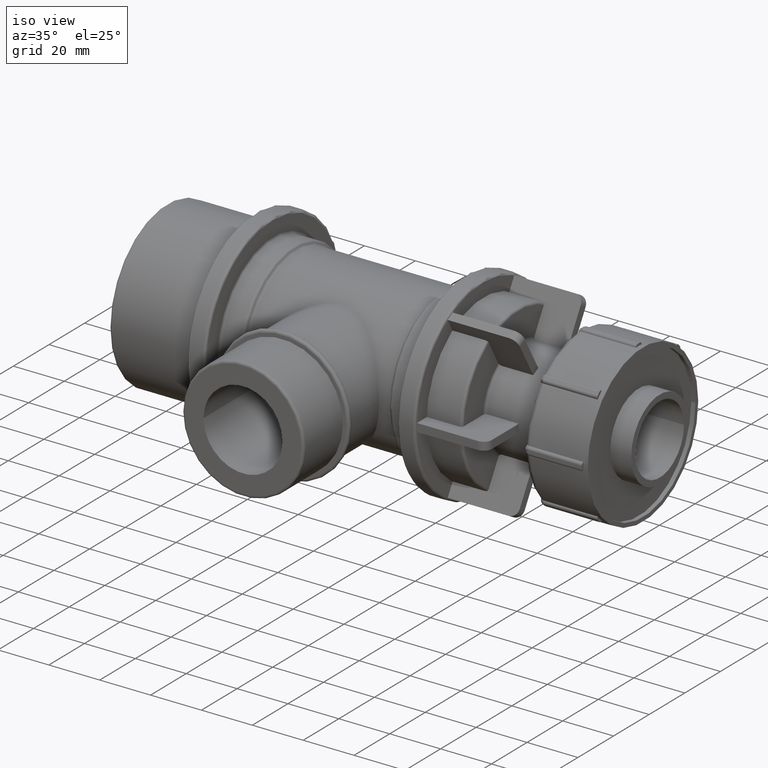
[diagram: clean part render]
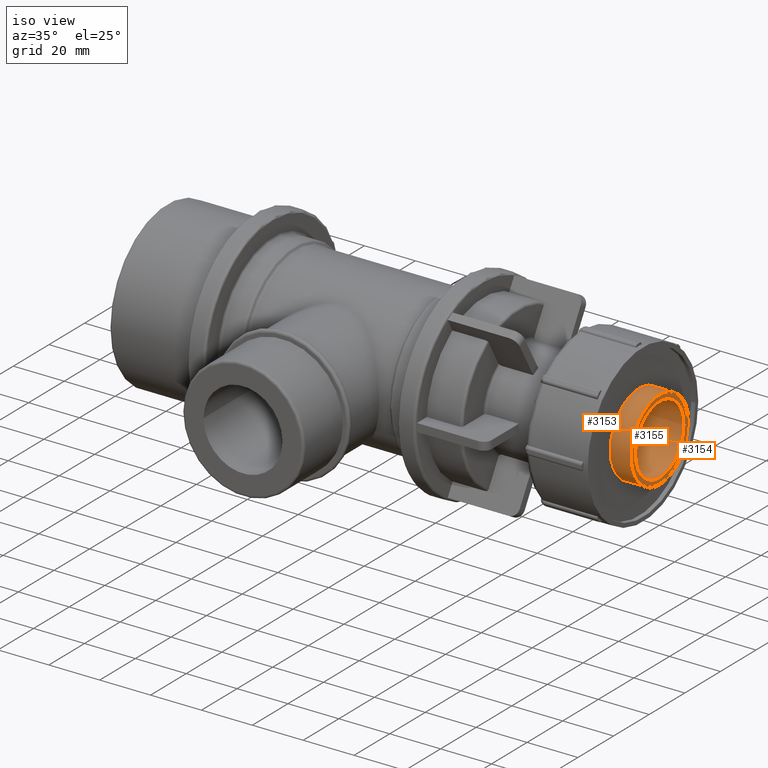
[diagram: same view with one multi-face feature highlighted, each face labeled with its STEP entity id]
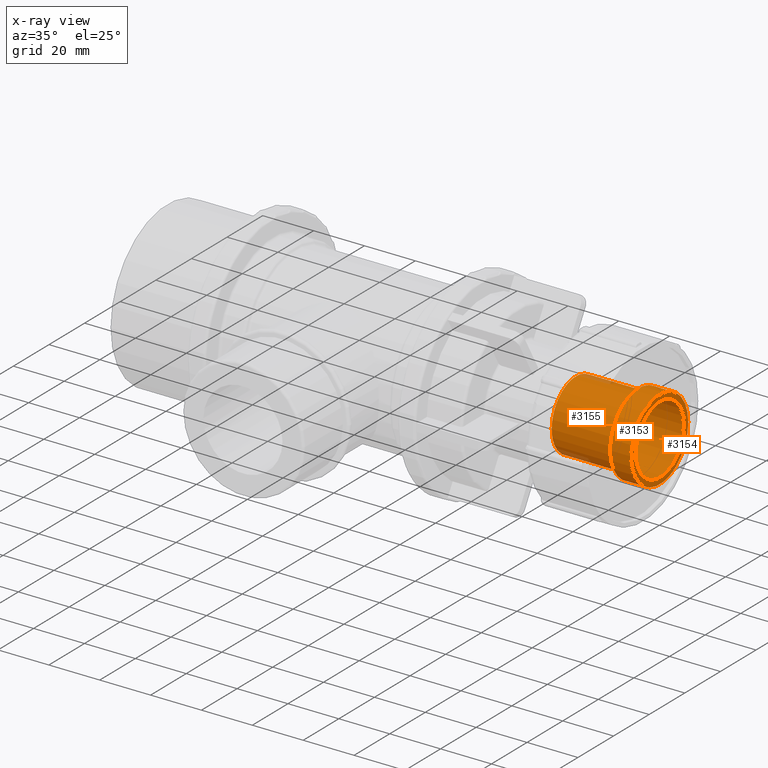
[diagram: x-ray of the same camera — body ghosted, the whole feature saturated]
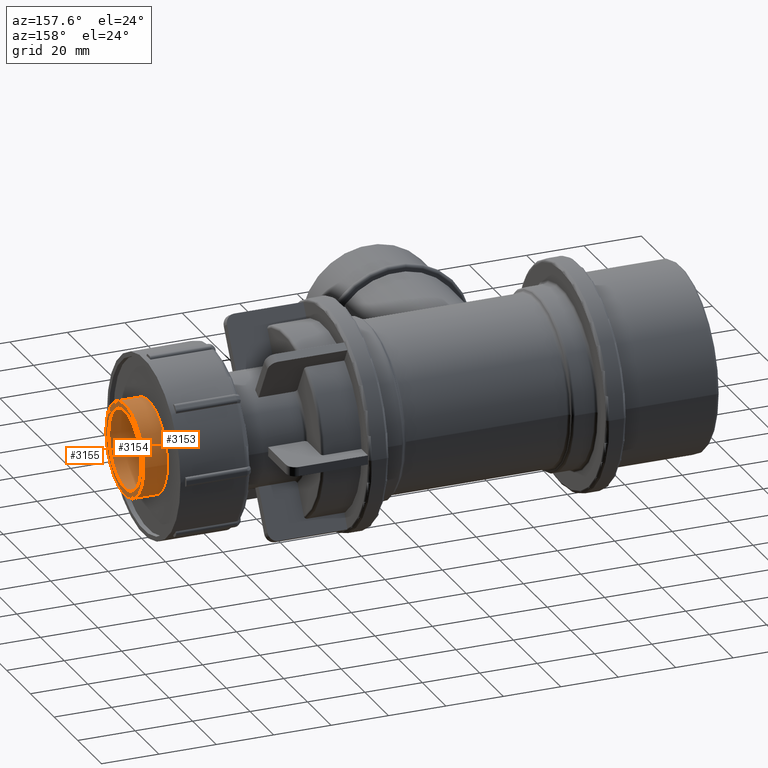
[diagram: same view with one multi-face feature highlighted, each face labeled with its STEP entity id]
A machine part, iso view. The highlighted faces form ONE feature: a stepped (counterbored) hole: 2 coaxial cylindrical walls of radii 13.6 -> 16 mm joined by 1 annular planar shoulder face(s). The faces share edges in the B-rep.
The next image is the same camera in x-ray: the body ghosted and the whole hole feature saturated, so the bore chain is visible through the body.
A second angle (auxiliary view) of the same feature is appended — it is thin or edge-on in the first view.
Their STEP definitions:
[1] entity #3153 (Cylinder):
#681=CIRCLE('',#3512,16.);
#682=CIRCLE('',#3514,16.);
#775=FACE_BOUND('',#1196,.T.);
#946=FACE_OUTER_BOUND('',#1195,.T.);
#1195=EDGE_LOOP('',(#2711));
#1196=EDGE_LOOP('',(#2712));
#1546=VERTEX_POINT('',#5907);
#1547=VERTEX_POINT('',#5910);
#1952=EDGE_CURVE('',#1546,#1546,#681,.T.);
#1953=EDGE_CURVE('',#1547,#1547,#682,.T.);
#2711=ORIENTED_EDGE('',*,*,#1953,.F.);
#2712=ORIENTED_EDGE('',*,*,#1952,.T.);
#2988=CYLINDRICAL_SURFACE('',#3513,16.);
#3153=ADVANCED_FACE('',(#946,#775),#2988,.T.);
#3512=AXIS2_PLACEMENT_3D('',#5908,#4286,#4287);
#3513=AXIS2_PLACEMENT_3D('',#5909,#4288,#4289);
#3514=AXIS2_PLACEMENT_3D('',#5911,#4290,#4291);
#4286=DIRECTION('center_axis',(1.,0.,0.));
#4287=DIRECTION('ref_axis',(0.,0.,-1.));
#4288=DIRECTION('center_axis',(1.,0.,0.));
#4289=DIRECTION('ref_axis',(0.,1.,0.));
#4290=DIRECTION('center_axis',(1.,0.,0.));
#4291=DIRECTION('ref_axis',(0.,0.,-1.));
#5907=CARTESIAN_POINT('',(105.9,16.,0.));
#5908=CARTESIAN_POINT('Origin',(105.9,0.,0.));
#5909=CARTESIAN_POINT('Origin',(110.025,0.,0.));
#5910=CARTESIAN_POINT('',(114.15,16.,0.));
#5911=CARTESIAN_POINT('Origin',(114.15,0.,0.));
[2] entity #3155 (Cylinder):
#683=CIRCLE('',#3516,13.6);
#684=CIRCLE('',#3518,13.6);
#777=FACE_BOUND('',#1200,.T.);
#948=FACE_OUTER_BOUND('',#1199,.T.);
#1199=EDGE_LOOP('',(#2715));
#1200=EDGE_LOOP('',(#2716));
#1548=VERTEX_POINT('',#5913);
#1549=VERTEX_POINT('',#5916);
#1954=EDGE_CURVE('',#1548,#1548,#683,.T.);
#1955=EDGE_CURVE('',#1549,#1549,#684,.T.);
#2715=ORIENTED_EDGE('',*,*,#1955,.F.);
#2716=ORIENTED_EDGE('',*,*,#1954,.T.);
#2989=CYLINDRICAL_SURFACE('',#3517,13.6);
#3155=ADVANCED_FACE('',(#948,#777),#2989,.F.);
#3516=AXIS2_PLACEMENT_3D('',#5914,#4294,#4295);
#3517=AXIS2_PLACEMENT_3D('',#5915,#4296,#4297);
#3518=AXIS2_PLACEMENT_3D('',#5917,#4298,#4299);
#4294=DIRECTION('center_axis',(1.,0.,0.));
#4295=DIRECTION('ref_axis',(0.,0.,-1.));
#4296=DIRECTION('center_axis',(1.,0.,0.));
#4297=DIRECTION('ref_axis',(0.,1.,0.));
#4298=DIRECTION('center_axis',(1.,0.,0.));
#4299=DIRECTION('ref_axis',(0.,0.,-1.));
#5913=CARTESIAN_POINT('',(114.15,13.6,0.));
#5914=CARTESIAN_POINT('Origin',(114.15,0.,0.));
#5915=CARTESIAN_POINT('Origin',(97.65,0.,0.));
#5916=CARTESIAN_POINT('',(81.15,13.6,0.));
#5917=CARTESIAN_POINT('Origin',(81.15,0.,0.));
[3] entity #3154 (Plane):
#467=PLANE('',#3515);
#682=CIRCLE('',#3514,16.);
#683=CIRCLE('',#3516,13.6);
#776=FACE_BOUND('',#1198,.T.);
#947=FACE_OUTER_BOUND('',#1197,.T.);
#1197=EDGE_LOOP('',(#2713));
#1198=EDGE_LOOP('',(#2714));
#1547=VERTEX_POINT('',#5910);
#1548=VERTEX_POINT('',#5913);
#1953=EDGE_CURVE('',#1547,#1547,#682,.T.);
#1954=EDGE_CURVE('',#1548,#1548,#683,.T.);
#2713=ORIENTED_EDGE('',*,*,#1953,.T.);
#2714=ORIENTED_EDGE('',*,*,#1954,.F.);
#3154=ADVANCED_FACE('',(#947,#776),#467,.T.);
#3514=AXIS2_PLACEMENT_3D('',#5911,#4290,#4291);
#3515=AXIS2_PLACEMENT_3D('',#5912,#4292,#4293);
#3516=AXIS2_PLACEMENT_3D('',#5914,#4294,#4295);
#4290=DIRECTION('center_axis',(1.,0.,0.));
#4291=DIRECTION('ref_axis',(0.,0.,-1.));
#4292=DIRECTION('center_axis',(1.,0.,0.));
#4293=DIRECTION('ref_axis',(0.,0.,-1.));
#4294=DIRECTION('center_axis',(1.,0.,0.));
#4295=DIRECTION('ref_axis',(0.,0.,-1.));
#5910=CARTESIAN_POINT('',(114.15,16.,0.));
#5911=CARTESIAN_POINT('Origin',(114.15,0.,0.));
#5912=CARTESIAN_POINT('Origin',(114.15,13.6,0.));
#5913=CARTESIAN_POINT('',(114.15,13.6,0.));
#5914=CARTESIAN_POINT('Origin',(114.15,0.,0.));